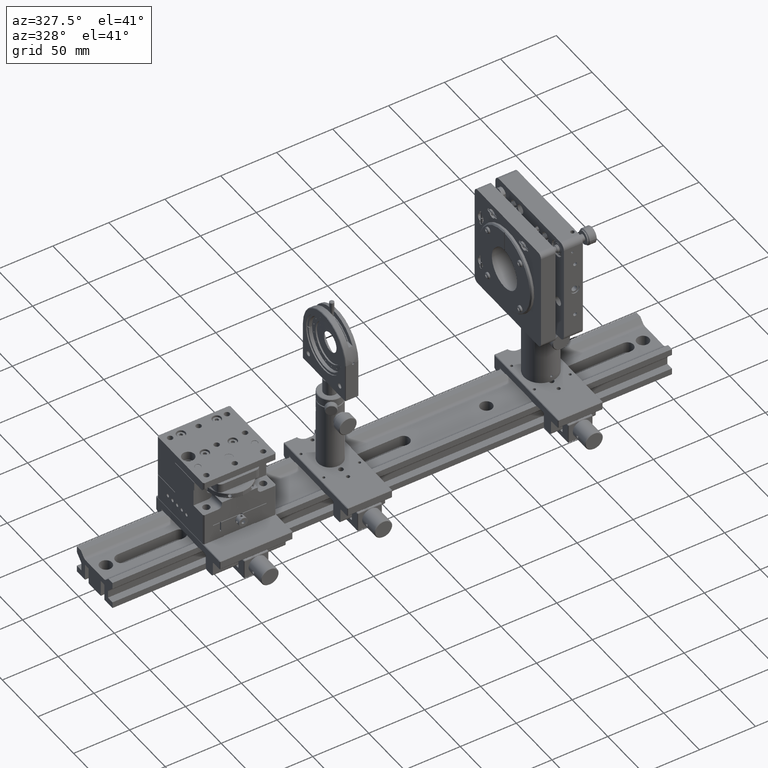
[diagram: clean part render]
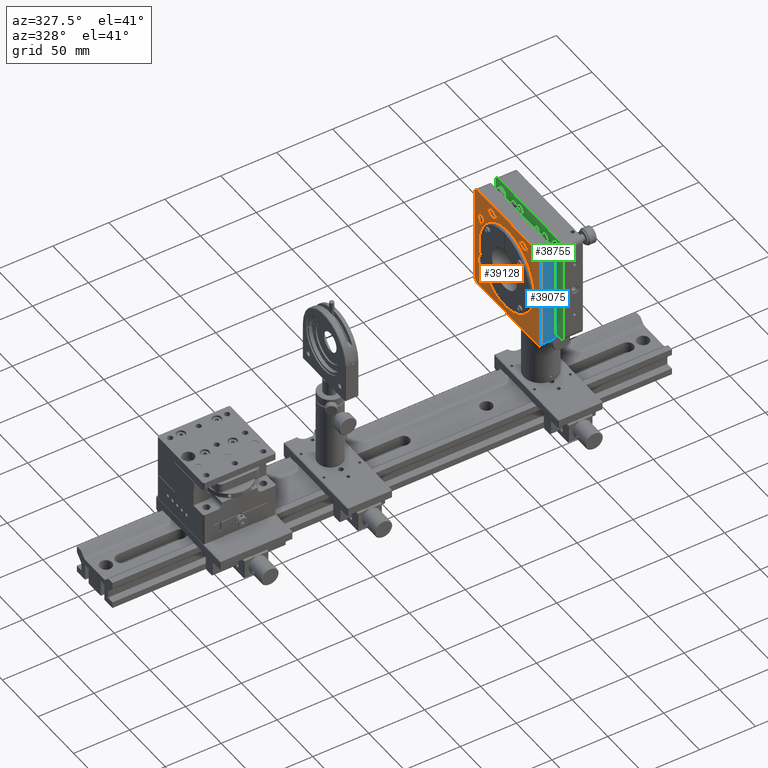
[diagram: same view with three faces highlighted in distinct colors, each labeled with its STEP entity id]
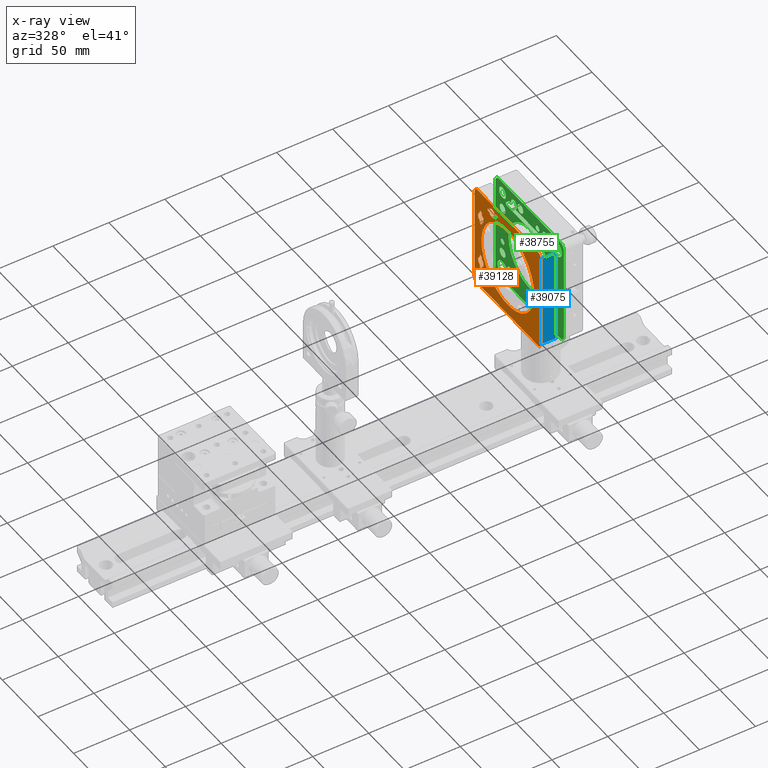
[diagram: x-ray of the same camera — body ghosted, the three highlighted faces saturated]
A machine part, auxiliary view with three faces highlighted in distinct colors.
The next image is the same camera in x-ray (body ghosted, the three faces saturated) — at least one of them is partly hidden behind the body in this view.
Their STEP definitions:

[orange] entity #39128 — the highlighted planar face has unit normal (1, 0, -0).
#3146=LINE('',#67691,#6456);
#3153=LINE('',#67719,#6463);
#3157=LINE('',#67726,#6467);
#3160=LINE('',#67736,#6470);
#3164=LINE('',#67745,#6474);
#3171=LINE('',#67773,#6481);
#3175=LINE('',#67780,#6485);
#3178=LINE('',#67790,#6488);
#3182=LINE('',#67808,#6492);
#3189=LINE('',#67827,#6499);
#3194=LINE('',#67842,#6504);
#3196=LINE('',#67849,#6506);
#3200=LINE('',#67862,#6510);
#3207=LINE('',#67881,#6517);
#3212=LINE('',#67896,#6522);
#3214=LINE('',#67903,#6524);
#3221=LINE('',#67925,#6531);
#3227=LINE('',#67959,#6537);
#3230=LINE('',#67967,#6540);
#3240=LINE('',#68008,#6550);
#6456=VECTOR('',#50892,10.);
#6463=VECTOR('',#50917,10.);
#6467=VECTOR('',#50923,10.);
#6470=VECTOR('',#50936,10.);
#6474=VECTOR('',#50942,10.);
#6481=VECTOR('',#50967,10.);
#6485=VECTOR('',#50973,10.);
#6488=VECTOR('',#50986,10.);
#6492=VECTOR('',#51008,10.);
#6499=VECTOR('',#51025,10.);
#6504=VECTOR('',#51038,10.);
#6506=VECTOR('',#51046,10.);
#6510=VECTOR('',#51058,10.);
#6517=VECTOR('',#51075,10.);
#6522=VECTOR('',#51088,10.);
#6524=VECTOR('',#51096,10.);
#6531=VECTOR('',#51117,10.);
#6537=VECTOR('',#51151,10.);
#6540=VECTOR('',#51160,10.);
#6550=VECTOR('',#51214,10.);
#8821=FACE_BOUND('',#12901,.T.);
#8822=FACE_BOUND('',#12902,.T.);
#8823=FACE_BOUND('',#12903,.T.);
#8824=FACE_BOUND('',#12904,.T.);
#8825=FACE_BOUND('',#12905,.T.);
#10281=FACE_OUTER_BOUND('',#12900,.T.);
#12900=EDGE_LOOP('',(#31626,#31627,#31628,#31629,#31630,#31631,#31632,#31633));
#12901=EDGE_LOOP('',(#31634));
#12902=EDGE_LOOP('',(#31635,#31636,#31637,#31638,#31639,#31640,#31641,#31642));
#12903=EDGE_LOOP('',(#31643,#31644,#31645,#31646,#31647,#31648,#31649,#31650));
#12904=EDGE_LOOP('',(#31651,#31652,#31653,#31654,#31655,#31656,#31657,#31658,
#31659));
#12905=EDGE_LOOP('',(#31660,#31661,#31662,#31663,#31664,#31665,#31666,#31667,
#31668));
#14969=CIRCLE('',#42689,1.5);
#14970=CIRCLE('',#42691,1.5);
#14977=CIRCLE('',#42705,1.5);
#14978=CIRCLE('',#42707,1.5);
#14979=CIRCLE('',#42710,4.);
#14980=CIRCLE('',#42711,4.);
#14982=CIRCLE('',#42714,4.);
#14983=CIRCLE('',#42715,4.);
#14988=CIRCLE('',#42724,1.5);
#14990=CIRCLE('',#42728,1.5);
#14996=CIRCLE('',#42740,1.5);
#14998=CIRCLE('',#42744,1.5);
#15001=CIRCLE('',#42750,4.);
#15013=CIRCLE('',#42765,4.);
#15014=CIRCLE('',#42768,4.);
#15015=CIRCLE('',#42771,4.);
#15018=CIRCLE('',#42779,4.);
#15019=CIRCLE('',#42780,4.);
#15020=CIRCLE('',#42781,4.);
#15021=CIRCLE('',#42783,4.);
#15022=CIRCLE('',#42784,4.);
#15023=CIRCLE('',#42785,4.);
#15042=CIRCLE('',#42845,37.);
#17963=VERTEX_POINT('',#67685);
#17965=VERTEX_POINT('',#67689);
#17976=VERTEX_POINT('',#67716);
#17977=VERTEX_POINT('',#67718);
#17978=VERTEX_POINT('',#67722);
#17979=VERTEX_POINT('',#67724);
#17980=VERTEX_POINT('',#67728);
#17981=VERTEX_POINT('',#67734);
#17983=VERTEX_POINT('',#67739);
#17985=VERTEX_POINT('',#67743);
#17996=VERTEX_POINT('',#67770);
#17997=VERTEX_POINT('',#67772);
#17998=VERTEX_POINT('',#67776);
#17999=VERTEX_POINT('',#67778);
#18000=VERTEX_POINT('',#67782);
#18001=VERTEX_POINT('',#67788);
#18004=VERTEX_POINT('',#67804);
#18006=VERTEX_POINT('',#67807);
#18012=VERTEX_POINT('',#67823);
#18013=VERTEX_POINT('',#67825);
#18014=VERTEX_POINT('',#67829);
#18015=VERTEX_POINT('',#67830);
#18019=VERTEX_POINT('',#67839);
#18020=VERTEX_POINT('',#67846);
#18024=VERTEX_POINT('',#67858);
#18026=VERTEX_POINT('',#67861);
#18032=VERTEX_POINT('',#67877);
#18033=VERTEX_POINT('',#67879);
#18034=VERTEX_POINT('',#67883);
#18035=VERTEX_POINT('',#67884);
#18039=VERTEX_POINT('',#67893);
#18040=VERTEX_POINT('',#67900);
#18044=VERTEX_POINT('',#67912);
#18045=VERTEX_POINT('',#67913);
#18049=VERTEX_POINT('',#67923);
#18062=VERTEX_POINT('',#67953);
#18063=VERTEX_POINT('',#67957);
#18064=VERTEX_POINT('',#67961);
#18065=VERTEX_POINT('',#67965);
#18066=VERTEX_POINT('',#67969);
#18071=VERTEX_POINT('',#67987);
#18072=VERTEX_POINT('',#67993);
#18115=VERTEX_POINT('',#68149);
#22637=EDGE_CURVE('',#17963,#17965,#3146,.T.);
#22650=EDGE_CURVE('',#17977,#17976,#3153,.T.);
#22654=EDGE_CURVE('',#17978,#17979,#3157,.T.);
#22655=EDGE_CURVE('',#17979,#17980,#14969,.T.);
#22657=EDGE_CURVE('',#17965,#17977,#14970,.T.);
#22659=EDGE_CURVE('',#17980,#17981,#3160,.T.);
#22663=EDGE_CURVE('',#17983,#17985,#3164,.T.);
#22676=EDGE_CURVE('',#17997,#17996,#3171,.T.);
#22680=EDGE_CURVE('',#17998,#17999,#3175,.T.);
#22681=EDGE_CURVE('',#17999,#18000,#14977,.T.);
#22683=EDGE_CURVE('',#17985,#17997,#14978,.T.);
#22685=EDGE_CURVE('',#18000,#18001,#3178,.T.);
#22686=EDGE_CURVE('',#17981,#17963,#14979,.T.);
#22687=EDGE_CURVE('',#17976,#17978,#14980,.T.);
#22690=EDGE_CURVE('',#18001,#17983,#14982,.T.);
#22691=EDGE_CURVE('',#17996,#17998,#14983,.T.);
#22695=EDGE_CURVE('',#18006,#18004,#3182,.T.);
#22705=EDGE_CURVE('',#18012,#18013,#3189,.T.);
#22706=EDGE_CURVE('',#18014,#18015,#14988,.T.);
#22712=EDGE_CURVE('',#18019,#18014,#3194,.T.);
#22713=EDGE_CURVE('',#18013,#18006,#14990,.T.);
#22715=EDGE_CURVE('',#18015,#18020,#3196,.T.);
#22721=EDGE_CURVE('',#18026,#18024,#3200,.T.);
#22731=EDGE_CURVE('',#18032,#18033,#3207,.T.);
#22732=EDGE_CURVE('',#18034,#18035,#14996,.T.);
#22738=EDGE_CURVE('',#18039,#18034,#3212,.T.);
#22739=EDGE_CURVE('',#18033,#18026,#14998,.T.);
#22741=EDGE_CURVE('',#18035,#18040,#3214,.T.);
#22746=EDGE_CURVE('',#18044,#18045,#15001,.T.);
#22752=EDGE_CURVE('',#18049,#18044,#3221,.T.);
#22766=EDGE_CURVE('',#18062,#18049,#15013,.T.);
#22769=EDGE_CURVE('',#18063,#18062,#3227,.T.);
#22770=EDGE_CURVE('',#18064,#18063,#15014,.T.);
#22773=EDGE_CURVE('',#18065,#18064,#3230,.T.);
#22774=EDGE_CURVE('',#18066,#18065,#15015,.T.);
#22782=EDGE_CURVE('',#18020,#18071,#15018,.T.);
#22783=EDGE_CURVE('',#18004,#18019,#15019,.T.);
#22784=EDGE_CURVE('',#18071,#18012,#15020,.T.);
#22786=EDGE_CURVE('',#18040,#18072,#15021,.T.);
#22787=EDGE_CURVE('',#18024,#18039,#15022,.T.);
#22788=EDGE_CURVE('',#18072,#18032,#15023,.T.);
#22794=EDGE_CURVE('',#18045,#18066,#3240,.T.);
#22858=EDGE_CURVE('',#18115,#18115,#15042,.T.);
#31626=ORIENTED_EDGE('',*,*,#22746,.F.);
#31627=ORIENTED_EDGE('',*,*,#22752,.F.);
#31628=ORIENTED_EDGE('',*,*,#22766,.F.);
#31629=ORIENTED_EDGE('',*,*,#22769,.F.);
#31630=ORIENTED_EDGE('',*,*,#22770,.F.);
#31631=ORIENTED_EDGE('',*,*,#22773,.F.);
#31632=ORIENTED_EDGE('',*,*,#22774,.F.);
#31633=ORIENTED_EDGE('',*,*,#22794,.F.);
#31634=ORIENTED_EDGE('',*,*,#22858,.T.);
#31635=ORIENTED_EDGE('',*,*,#22659,.T.);
#31636=ORIENTED_EDGE('',*,*,#22686,.T.);
#31637=ORIENTED_EDGE('',*,*,#22637,.T.);
#31638=ORIENTED_EDGE('',*,*,#22657,.T.);
#31639=ORIENTED_EDGE('',*,*,#22650,.T.);
#31640=ORIENTED_EDGE('',*,*,#22687,.T.);
#31641=ORIENTED_EDGE('',*,*,#22654,.T.);
#31642=ORIENTED_EDGE('',*,*,#22655,.T.);
#31643=ORIENTED_EDGE('',*,*,#22685,.T.);
#31644=ORIENTED_EDGE('',*,*,#22690,.T.);
#31645=ORIENTED_EDGE('',*,*,#22663,.T.);
#31646=ORIENTED_EDGE('',*,*,#22683,.T.);
#31647=ORIENTED_EDGE('',*,*,#22676,.T.);
#31648=ORIENTED_EDGE('',*,*,#22691,.T.);
#31649=ORIENTED_EDGE('',*,*,#22680,.T.);
#31650=ORIENTED_EDGE('',*,*,#22681,.T.);
#31651=ORIENTED_EDGE('',*,*,#22712,.T.);
#31652=ORIENTED_EDGE('',*,*,#22706,.T.);
#31653=ORIENTED_EDGE('',*,*,#22715,.T.);
#31654=ORIENTED_EDGE('',*,*,#22782,.T.);
#31655=ORIENTED_EDGE('',*,*,#22784,.T.);
#31656=ORIENTED_EDGE('',*,*,#22705,.T.);
#31657=ORIENTED_EDGE('',*,*,#22713,.T.);
#31658=ORIENTED_EDGE('',*,*,#22695,.T.);
#31659=ORIENTED_EDGE('',*,*,#22783,.T.);
#31660=ORIENTED_EDGE('',*,*,#22738,.T.);
#31661=ORIENTED_EDGE('',*,*,#22732,.T.);
#31662=ORIENTED_EDGE('',*,*,#22741,.T.);
#31663=ORIENTED_EDGE('',*,*,#22786,.T.);
#31664=ORIENTED_EDGE('',*,*,#22788,.T.);
#31665=ORIENTED_EDGE('',*,*,#22731,.T.);
#31666=ORIENTED_EDGE('',*,*,#22739,.T.);
#31667=ORIENTED_EDGE('',*,*,#22721,.T.);
#31668=ORIENTED_EDGE('',*,*,#22787,.T.);
#37384=PLANE('',#42844);
#39128=ADVANCED_FACE('',(#10281,#8821,#8822,#8823,#8824,#8825),#37384,.F.);
#42689=AXIS2_PLACEMENT_3D('',#67729,#50926,#50927);
#42691=AXIS2_PLACEMENT_3D('',#67732,#50931,#50932);
#42705=AXIS2_PLACEMENT_3D('',#67783,#50976,#50977);
#42707=AXIS2_PLACEMENT_3D('',#67786,#50981,#50982);
#42710=AXIS2_PLACEMENT_3D('',#67792,#50989,#50990);
#42711=AXIS2_PLACEMENT_3D('',#67793,#50991,#50992);
#42714=AXIS2_PLACEMENT_3D('',#67798,#50998,#50999);
#42715=AXIS2_PLACEMENT_3D('',#67799,#51000,#51001);
#42724=AXIS2_PLACEMENT_3D('',#67831,#51028,#51029);
#42728=AXIS2_PLACEMENT_3D('',#67844,#51041,#51042);
#42740=AXIS2_PLACEMENT_3D('',#67885,#51078,#51079);
#42744=AXIS2_PLACEMENT_3D('',#67898,#51091,#51092);
#42750=AXIS2_PLACEMENT_3D('',#67914,#51107,#51108);
#42765=AXIS2_PLACEMENT_3D('',#67954,#51145,#51146);
#42768=AXIS2_PLACEMENT_3D('',#67962,#51154,#51155);
#42771=AXIS2_PLACEMENT_3D('',#67970,#51163,#51164);
#42779=AXIS2_PLACEMENT_3D('',#67988,#51184,#51185);
#42780=AXIS2_PLACEMENT_3D('',#67989,#51186,#51187);
#42781=AXIS2_PLACEMENT_3D('',#67990,#51188,#51189);
#42783=AXIS2_PLACEMENT_3D('',#67994,#51193,#51194);
#42784=AXIS2_PLACEMENT_3D('',#67995,#51195,#51196);
#42785=AXIS2_PLACEMENT_3D('',#67996,#51197,#51198);
#42844=AXIS2_PLACEMENT_3D('',#68148,#51366,#51367);
#42845=AXIS2_PLACEMENT_3D('',#68150,#51368,#51369);
#50892=DIRECTION('',(-1.,1.48286359674599E-30,4.79640460653305E-16));
#50917=DIRECTION('',(1.,-1.48286359674599E-30,-4.79640460653305E-16));
#50923=DIRECTION('',(1.,-1.48286359674599E-30,-4.79640460653305E-16));
#50926=DIRECTION('center_axis',(1.48286359674599E-30,1.,6.16297582203888E-32));
#50927=DIRECTION('ref_axis',(-4.79640460653305E-16,6.16297582203895E-32,
-1.));
#50931=DIRECTION('center_axis',(1.48286359674599E-30,1.,6.16297582203888E-32));
#50932=DIRECTION('ref_axis',(4.79640460653305E-16,-6.16297582203895E-32,
1.));
#50936=DIRECTION('',(-1.,1.48286359674599E-30,4.79640460653305E-16));
#50942=DIRECTION('',(-1.,1.48286359674599E-30,4.79640460653305E-16));
#50967=DIRECTION('',(1.,-1.48286359674599E-30,-4.79640460653305E-16));
#50973=DIRECTION('',(1.,-1.48286359674599E-30,-4.79640460653305E-16));
#50976=DIRECTION('center_axis',(1.48286359674599E-30,1.,6.16297582203888E-32));
#50977=DIRECTION('ref_axis',(-4.79640460653305E-16,6.16297582203895E-32,
-1.));
#50981=DIRECTION('center_axis',(1.48286359674599E-30,1.,6.16297582203888E-32));
#50982=DIRECTION('ref_axis',(4.79640460653305E-16,-6.16297582203895E-32,
1.));
#50986=DIRECTION('',(-1.,1.48286359674599E-30,4.79640460653305E-16));
#50989=DIRECTION('center_axis',(1.48286359674599E-30,1.,6.16297582203888E-32));
#50990=DIRECTION('ref_axis',(1.,-1.48286359674599E-30,-4.18408120695937E-16));
#50991=DIRECTION('center_axis',(1.48286359674599E-30,1.,6.16297582203888E-32));
#50992=DIRECTION('ref_axis',(1.,-1.48286359674599E-30,-4.18408120695937E-16));
#50998=DIRECTION('center_axis',(1.48286359674599E-30,1.,6.16297582203888E-32));
#50999=DIRECTION('ref_axis',(1.,-1.48286359674599E-30,-4.18408120695937E-16));
#51000=DIRECTION('center_axis',(1.48286359674599E-30,1.,6.16297582203888E-32));
#51001=DIRECTION('ref_axis',(1.,-1.48286359674599E-30,-4.18408120695937E-16));
#51008=DIRECTION('',(-4.18408120695937E-16,6.16297582203894E-32,-1.));
#51025=DIRECTION('',(4.18408120695937E-16,-6.16297582203894E-32,1.));
#51028=DIRECTION('center_axis',(1.48286359674599E-30,1.,6.16297582203888E-32));
#51029=DIRECTION('ref_axis',(-1.,1.48286359674599E-30,4.18408120695937E-16));
#51038=DIRECTION('',(-4.18408120695937E-16,6.16297582203894E-32,-1.));
#51041=DIRECTION('center_axis',(1.48286359674599E-30,1.,6.16297582203888E-32));
#51042=DIRECTION('ref_axis',(1.,-1.48286359674599E-30,-4.18408120695937E-16));
#51046=DIRECTION('',(4.18408120695937E-16,-6.16297582203894E-32,1.));
#51058=DIRECTION('',(-4.18408120695937E-16,6.16297582203894E-32,-1.));
#51075=DIRECTION('',(4.18408120695937E-16,-6.16297582203894E-32,1.));
#51078=DIRECTION('center_axis',(1.48286359674599E-30,1.,6.16297582203888E-32));
#51079=DIRECTION('ref_axis',(-1.,1.48286359674599E-30,4.18408120695937E-16));
#51088=DIRECTION('',(-4.18408120695937E-16,6.16297582203894E-32,-1.));
#51091=DIRECTION('center_axis',(1.48286359674599E-30,1.,6.16297582203888E-32));
#51092=DIRECTION('ref_axis',(1.,-1.48286359674599E-30,-4.18408120695937E-16));
#51096=DIRECTION('',(4.18408120695937E-16,-6.16297582203894E-32,1.));
#51107=DIRECTION('center_axis',(1.48286359674599E-30,1.,6.16297582203888E-32));
#51108=DIRECTION('ref_axis',(0.707106781186547,-1.00496408487324E-30,-0.707106781186548));
#51117=DIRECTION('',(-7.04917288341139E-16,6.16297582203899E-32,-1.));
#51145=DIRECTION('center_axis',(1.48286359674599E-30,1.,6.16297582203888E-32));
#51146=DIRECTION('ref_axis',(0.707106781186548,-1.09212172479429E-30,0.707106781186547));
#51151=DIRECTION('',(1.,-1.48286359674599E-30,-4.18408120695937E-16));
#51154=DIRECTION('center_axis',(1.48286359674599E-30,1.,6.16297582203888E-32));
#51155=DIRECTION('ref_axis',(-0.707106781186547,1.00496408487324E-30,0.707106781186548));
#51160=DIRECTION('',(4.18408120695937E-16,-6.16297582203894E-32,1.));
#51163=DIRECTION('center_axis',(1.48286359674599E-30,1.,6.16297582203888E-32));
#51164=DIRECTION('ref_axis',(-0.707106781186548,1.09212172479429E-30,-0.707106781186547));
#51184=DIRECTION('center_axis',(1.48286359674599E-30,1.,6.16297582203888E-32));
#51185=DIRECTION('ref_axis',(1.,-1.48286359674599E-30,-4.18408120695937E-16));
#51186=DIRECTION('center_axis',(1.48286359674599E-30,1.,6.16297582203888E-32));
#51187=DIRECTION('ref_axis',(1.,-1.48286359674599E-30,-4.18408120695937E-16));
#51188=DIRECTION('center_axis',(1.48286359674599E-30,1.,6.16297582203888E-32));
#51189=DIRECTION('ref_axis',(1.,-1.48286359674599E-30,-4.18408120695937E-16));
#51193=DIRECTION('center_axis',(1.48286359674599E-30,1.,6.16297582203888E-32));
#51194=DIRECTION('ref_axis',(1.,-1.48286359674599E-30,-4.18408120695937E-16));
#51195=DIRECTION('center_axis',(1.48286359674599E-30,1.,6.16297582203888E-32));
#51196=DIRECTION('ref_axis',(1.,-1.48286359674599E-30,-4.18408120695937E-16));
#51197=DIRECTION('center_axis',(1.48286359674599E-30,1.,6.16297582203888E-32));
#51198=DIRECTION('ref_axis',(1.,-1.48286359674599E-30,-4.18408120695937E-16));
#51214=DIRECTION('',(-1.,1.48286359674599E-30,4.18408120695937E-16));
#51366=DIRECTION('center_axis',(1.48286359674599E-30,1.,6.16297582203888E-32));
#51367=DIRECTION('ref_axis',(4.18408120695937E-16,-6.16297582203894E-32,
1.));
#51368=DIRECTION('center_axis',(1.48286359674599E-30,1.,6.16297582203888E-32));
#51369=DIRECTION('ref_axis',(0.707106781186523,-1.0049640848732E-30,-0.707106781186572));
#67685=CARTESIAN_POINT('',(18.2919007564521,-19.5,36.5));
#67689=CARTESIAN_POINT('',(17.,-19.5,36.5));
#67691=CARTESIAN_POINT('',(13.5,-19.5,36.5));
#67716=CARTESIAN_POINT('',(18.2919007564521,-19.5,39.5));
#67718=CARTESIAN_POINT('',(17.,-19.5,39.5));
#67719=CARTESIAN_POINT('',(8.49999999999995,-19.5,39.5));
#67722=CARTESIAN_POINT('',(25.7080992435478,-19.5,39.5));
#67724=CARTESIAN_POINT('',(27.,-19.5,39.5));
#67726=CARTESIAN_POINT('',(8.49999999999995,-19.5,39.5));
#67728=CARTESIAN_POINT('',(26.9999999999999,-19.5,36.5));
#67729=CARTESIAN_POINT('Origin',(27.,-19.5,38.));
#67732=CARTESIAN_POINT('Origin',(17.,-19.5,38.));
#67734=CARTESIAN_POINT('',(25.7080992435478,-19.5,36.5));
#67736=CARTESIAN_POINT('',(13.5,-19.5,36.5));
#67739=CARTESIAN_POINT('',(-25.7080992435479,-19.5,36.5));
#67743=CARTESIAN_POINT('',(-27.,-19.5,36.5));
#67745=CARTESIAN_POINT('',(-8.50000000000005,-19.5,36.5));
#67770=CARTESIAN_POINT('',(-25.7080992435479,-19.5,39.5));
#67772=CARTESIAN_POINT('',(-27.,-19.5,39.5));
#67773=CARTESIAN_POINT('',(-13.5,-19.5,39.5));
#67776=CARTESIAN_POINT('',(-18.2919007564522,-19.5,39.5));
#67778=CARTESIAN_POINT('',(-17.0000000000001,-19.5,39.5));
#67780=CARTESIAN_POINT('',(-13.5,-19.5,39.5));
#67782=CARTESIAN_POINT('',(-17.0000000000001,-19.5,36.5));
#67783=CARTESIAN_POINT('Origin',(-17.0000000000001,-19.5,38.));
#67786=CARTESIAN_POINT('Origin',(-27.,-19.5,38.));
#67788=CARTESIAN_POINT('',(-18.2919007564522,-19.5,36.5));
#67790=CARTESIAN_POINT('',(-8.50000000000005,-19.5,36.5));
#67792=CARTESIAN_POINT('Origin',(22.,-19.5,38.));
#67793=CARTESIAN_POINT('Origin',(22.,-19.5,38.));
#67798=CARTESIAN_POINT('Origin',(-22.0000000000001,-19.5,38.));
#67799=CARTESIAN_POINT('Origin',(-22.0000000000001,-19.5,38.));
#67804=CARTESIAN_POINT('',(-36.5000000000001,-19.5,-18.2919007564522));
#67807=CARTESIAN_POINT('',(-36.5000000000001,-19.5,-17.));
#67808=CARTESIAN_POINT('',(-36.5000000000001,-19.5,-8.49999999999998));
#67823=CARTESIAN_POINT('',(-39.5000000000001,-19.5,-18.2919007564522));
#67825=CARTESIAN_POINT('',(-39.5000000000001,-19.5,-17.));
#67827=CARTESIAN_POINT('',(-39.5000000000001,-19.5,-13.5));
#67829=CARTESIAN_POINT('',(-36.5000000000001,-19.5,-27.));
#67830=CARTESIAN_POINT('',(-39.5000000000001,-19.5,-27.));
#67831=CARTESIAN_POINT('Origin',(-38.0000000000001,-19.5,-27.));
#67839=CARTESIAN_POINT('',(-36.5000000000001,-19.5,-25.7080992435478));
#67842=CARTESIAN_POINT('',(-36.5000000000001,-19.5,-8.49999999999998));
#67844=CARTESIAN_POINT('Origin',(-38.0000000000001,-19.5,-17.));
#67846=CARTESIAN_POINT('',(-39.5000000000001,-19.5,-25.7080992435478));
#67849=CARTESIAN_POINT('',(-39.5000000000001,-19.5,-13.5));
#67858=CARTESIAN_POINT('',(-36.5000000000001,-19.5,25.7080992435478));
#67861=CARTESIAN_POINT('',(-36.5000000000001,-19.5,27.));
#67862=CARTESIAN_POINT('',(-36.5000000000001,-19.5,13.5));
#67877=CARTESIAN_POINT('',(-39.5000000000001,-19.5,25.7080992435478));
#67879=CARTESIAN_POINT('',(-39.5000000000001,-19.5,27.));
#67881=CARTESIAN_POINT('',(-39.5000000000001,-19.5,8.50000000000002));
#67883=CARTESIAN_POINT('',(-36.5000000000001,-19.5,17.));
#67884=CARTESIAN_POINT('',(-39.5000000000001,-19.5,17.));
#67885=CARTESIAN_POINT('Origin',(-38.0000000000001,-19.5,17.));
#67893=CARTESIAN_POINT('',(-36.5000000000001,-19.5,18.2919007564522));
#67896=CARTESIAN_POINT('',(-36.5000000000001,-19.5,13.5));
#67898=CARTESIAN_POINT('Origin',(-38.0000000000001,-19.5,27.));
#67900=CARTESIAN_POINT('',(-39.5000000000001,-19.5,18.2919007564522));
#67903=CARTESIAN_POINT('',(-39.5000000000001,-19.5,8.50000000000002));
#67912=CARTESIAN_POINT('',(46.4999999999999,-19.5,-42.5));
#67913=CARTESIAN_POINT('',(42.4999999999999,-19.5,-46.5));
#67914=CARTESIAN_POINT('Origin',(42.4999999999999,-19.5,-42.5));
#67923=CARTESIAN_POINT('',(46.5,-19.5,42.5));
#67925=CARTESIAN_POINT('',(46.4999999999999,-19.5,-46.5));
#67953=CARTESIAN_POINT('',(42.5,-19.5,46.5));
#67954=CARTESIAN_POINT('Origin',(42.5,-19.5,42.5));
#67957=CARTESIAN_POINT('',(-42.5000000000001,-19.5,46.5));
#67959=CARTESIAN_POINT('',(46.5,-19.5,46.5));
#67961=CARTESIAN_POINT('',(-46.5000000000001,-19.5,42.5));
#67962=CARTESIAN_POINT('Origin',(-42.5000000000001,-19.5,42.5));
#67965=CARTESIAN_POINT('',(-46.5000000000001,-19.5,-42.5));
#67967=CARTESIAN_POINT('',(-46.5000000000001,-19.5,46.5));
#67969=CARTESIAN_POINT('',(-42.5000000000001,-19.5,-46.5));
#67970=CARTESIAN_POINT('Origin',(-42.5000000000001,-19.5,-42.5));
#67987=CARTESIAN_POINT('',(-42.0000000000001,-19.5,-22.));
#67988=CARTESIAN_POINT('Origin',(-38.0000000000001,-19.5,-22.));
#67989=CARTESIAN_POINT('Origin',(-38.0000000000001,-19.5,-22.));
#67990=CARTESIAN_POINT('Origin',(-38.0000000000001,-19.5,-22.));
#67993=CARTESIAN_POINT('',(-42.0000000000001,-19.5,22.));
#67994=CARTESIAN_POINT('Origin',(-38.0000000000001,-19.5,22.));
#67995=CARTESIAN_POINT('Origin',(-38.0000000000001,-19.5,22.));
#67996=CARTESIAN_POINT('Origin',(-38.0000000000001,-19.5,22.));
#68008=CARTESIAN_POINT('',(-46.5000000000001,-19.5,-46.5));
#68148=CARTESIAN_POINT('Origin',(-6.66133814775094E-14,-19.5,2.22044604925031E-15));
#68149=CARTESIAN_POINT('',(-26.1629509039014,-19.5,26.1629509039032));
#68150=CARTESIAN_POINT('Origin',(-7.31197235431731E-14,-19.5,2.09257472670713E-15));

[blue] entity #39075 — the highlighted planar face has unit normal (0, -1, 0).
#3218=LINE('',#67919,#6528);
#3219=LINE('',#67922,#6529);
#3220=LINE('',#67924,#6530);
#3221=LINE('',#67925,#6531);
#6528=VECTOR('',#51112,10.);
#6529=VECTOR('',#51115,10.);
#6530=VECTOR('',#51116,10.);
#6531=VECTOR('',#51117,10.);
#10228=FACE_OUTER_BOUND('',#12822,.T.);
#12822=EDGE_LOOP('',(#31380,#31381,#31382,#31383));
#18044=VERTEX_POINT('',#67912);
#18047=VERTEX_POINT('',#67917);
#18048=VERTEX_POINT('',#67921);
#18049=VERTEX_POINT('',#67923);
#22749=EDGE_CURVE('',#18047,#18044,#3218,.T.);
#22750=EDGE_CURVE('',#18047,#18048,#3219,.T.);
#22751=EDGE_CURVE('',#18049,#18048,#3220,.T.);
#22752=EDGE_CURVE('',#18049,#18044,#3221,.T.);
#31380=ORIENTED_EDGE('',*,*,#22749,.F.);
#31381=ORIENTED_EDGE('',*,*,#22750,.T.);
#31382=ORIENTED_EDGE('',*,*,#22751,.F.);
#31383=ORIENTED_EDGE('',*,*,#22752,.T.);
#37355=PLANE('',#42752);
#39075=ADVANCED_FACE('',(#10228),#37355,.T.);
#42752=AXIS2_PLACEMENT_3D('',#67920,#51113,#51114);
#51112=DIRECTION('',(-1.48286359674599E-30,-1.,-6.16297582203888E-32));
#51113=DIRECTION('center_axis',(1.,-1.48286359674599E-30,-7.04917288341139E-16));
#51114=DIRECTION('ref_axis',(-7.04917288341139E-16,6.16297582203899E-32,
-1.));
#51115=DIRECTION('',(7.04917288341139E-16,-6.16297582203899E-32,1.));
#51116=DIRECTION('',(1.48286359674599E-30,1.,6.16297582203888E-32));
#51117=DIRECTION('',(-7.04917288341139E-16,6.16297582203899E-32,-1.));
#67912=CARTESIAN_POINT('',(46.4999999999999,-19.5,-42.5));
#67917=CARTESIAN_POINT('',(46.4999999999999,-6.5,-42.5));
#67919=CARTESIAN_POINT('',(46.4999999999999,-6.5,-42.5));
#67920=CARTESIAN_POINT('Origin',(46.5,-6.5,46.5));
#67921=CARTESIAN_POINT('',(46.5,-6.5,42.5));
#67922=CARTESIAN_POINT('',(46.4999999999999,-6.5,-46.5));
#67923=CARTESIAN_POINT('',(46.5,-19.5,42.5));
#67924=CARTESIAN_POINT('',(46.5,-6.5,42.5));
#67925=CARTESIAN_POINT('',(46.4999999999999,-19.5,-46.5));

[green] entity #38755 — the highlighted planar face has unit normal (1, 0, -0).
#629=B_SPLINE_CURVE_WITH_KNOTS('',3,(#64894,#64895,#64896,#64897),
 .UNSPECIFIED.,.F.,.F.,(4,4),(0.,0.00444310024717284),.UNSPECIFIED.);
#634=B_SPLINE_CURVE_WITH_KNOTS('',3,(#65292,#65293,#65294,#65295),
 .UNSPECIFIED.,.F.,.F.,(4,4),(0.,0.00475790876328646),.UNSPECIFIED.);
#2643=LINE('',#64579,#5953);
#2647=LINE('',#64586,#5957);
#2649=LINE('',#64590,#5959);
#2654=LINE('',#64601,#5964);
#2668=LINE('',#64726,#5978);
#2675=LINE('',#64984,#5985);
#2678=LINE('',#64999,#5988);
#2680=LINE('',#65124,#5990);
#2737=LINE('',#65934,#6047);
#2740=LINE('',#65939,#6050);
#2742=LINE('',#65942,#6052);
#2745=LINE('',#65958,#6055);
#2746=LINE('',#65962,#6056);
#2747=LINE('',#65966,#6057);
#2748=LINE('',#65969,#6058);
#2749=LINE('',#65998,#6059);
#2750=LINE('',#66002,#6060);
#5953=VECTOR('',#49219,10.);
#5957=VECTOR('',#49225,10.);
#5959=VECTOR('',#49229,10.);
#5964=VECTOR('',#49236,10.);
#5978=VECTOR('',#49270,10.);
#5985=VECTOR('',#49281,10.);
#5988=VECTOR('',#49288,10.);
#5990=VECTOR('',#49292,10.);
#6047=VECTOR('',#49421,10.);
#6050=VECTOR('',#49426,10.);
#6052=VECTOR('',#49430,10.);
#6055=VECTOR('',#49449,10.);
#6056=VECTOR('',#49452,10.);
#6057=VECTOR('',#49455,10.);
#6058=VECTOR('',#49458,10.);
#6059=VECTOR('',#49485,10.);
#6060=VECTOR('',#49488,10.);
#8714=FACE_BOUND('',#12421,.T.);
#8715=FACE_BOUND('',#12422,.T.);
#8716=FACE_BOUND('',#12423,.T.);
#8717=FACE_BOUND('',#12424,.T.);
#8718=FACE_BOUND('',#12425,.T.);
#8719=FACE_BOUND('',#12426,.T.);
#8720=FACE_BOUND('',#12427,.T.);
#8721=FACE_BOUND('',#12428,.T.);
#8722=FACE_BOUND('',#12429,.T.);
#8723=FACE_BOUND('',#12430,.T.);
#8724=FACE_BOUND('',#12431,.T.);
#8725=FACE_BOUND('',#12432,.T.);
#8726=FACE_BOUND('',#12433,.T.);
#8727=FACE_BOUND('',#12434,.T.);
#8728=FACE_BOUND('',#12435,.T.);
#9908=FACE_OUTER_BOUND('',#12420,.T.);
#12420=EDGE_LOOP('',(#29848,#29849,#29850,#29851,#29852,#29853,#29854,#29855));
#12421=EDGE_LOOP('',(#29856));
#12422=EDGE_LOOP('',(#29857));
#12423=EDGE_LOOP('',(#29858));
#12424=EDGE_LOOP('',(#29859));
#12425=EDGE_LOOP('',(#29860));
#12426=EDGE_LOOP('',(#29861));
#12427=EDGE_LOOP('',(#29862));
#12428=EDGE_LOOP('',(#29863));
#12429=EDGE_LOOP('',(#29864));
#12430=EDGE_LOOP('',(#29865));
#12431=EDGE_LOOP('',(#29866));
#12432=EDGE_LOOP('',(#29867));
#12433=EDGE_LOOP('',(#29868));
#12434=EDGE_LOOP('',(#29869,#29870,#29871,#29872));
#12435=EDGE_LOOP('',(#29873,#29874,#29875,#29876,#29877,#29878,#29879,#29880,
#29881,#29882,#29883,#29884,#29885,#29886,#29887,#29888,#29889,#29890));
#14723=CIRCLE('',#42150,30.5);
#14726=CIRCLE('',#42156,5.);
#14727=CIRCLE('',#42157,5.);
#14728=CIRCLE('',#42158,5.);
#14729=CIRCLE('',#42159,5.);
#14730=CIRCLE('',#42160,29.5);
#14731=CIRCLE('',#42161,3.5);
#14732=CIRCLE('',#42162,3.5);
#14733=CIRCLE('',#42163,7.);
#14734=CIRCLE('',#42164,7.);
#14735=CIRCLE('',#42165,4.);
#14736=CIRCLE('',#42166,4.);
#14737=CIRCLE('',#42167,4.);
#14738=CIRCLE('',#42168,4.);
#14739=CIRCLE('',#42169,4.);
#14740=CIRCLE('',#42170,4.);
#14741=CIRCLE('',#42171,2.5);
#14742=CIRCLE('',#42172,2.5);
#14743=CIRCLE('',#42173,5.);
#14744=CIRCLE('',#42174,5.);
#14745=CIRCLE('',#42175,4.);
#14746=CIRCLE('',#42176,4.);
#14747=CIRCLE('',#42177,4.);
#14748=CIRCLE('',#42178,4.);
#17433=VERTEX_POINT('',#64577);
#17434=VERTEX_POINT('',#64578);
#17436=VERTEX_POINT('',#64585);
#17437=VERTEX_POINT('',#64589);
#17440=VERTEX_POINT('',#64597);
#17442=VERTEX_POINT('',#64600);
#17458=VERTEX_POINT('',#64725);
#17461=VERTEX_POINT('',#64892);
#17462=VERTEX_POINT('',#64893);
#17468=VERTEX_POINT('',#64997);
#17469=VERTEX_POINT('',#64998);
#17472=VERTEX_POINT('',#65123);
#17475=VERTEX_POINT('',#65291);
#17510=VERTEX_POINT('',#65932);
#17511=VERTEX_POINT('',#65933);
#17512=VERTEX_POINT('',#65938);
#17515=VERTEX_POINT('',#65954);
#17516=VERTEX_POINT('',#65955);
#17517=VERTEX_POINT('',#65957);
#17518=VERTEX_POINT('',#65959);
#17519=VERTEX_POINT('',#65961);
#17520=VERTEX_POINT('',#65963);
#17521=VERTEX_POINT('',#65965);
#17522=VERTEX_POINT('',#65967);
#17523=VERTEX_POINT('',#65970);
#17524=VERTEX_POINT('',#65972);
#17525=VERTEX_POINT('',#65974);
#17526=VERTEX_POINT('',#65976);
#17527=VERTEX_POINT('',#65978);
#17528=VERTEX_POINT('',#65980);
#17529=VERTEX_POINT('',#65982);
#17530=VERTEX_POINT('',#65984);
#17531=VERTEX_POINT('',#65986);
#17532=VERTEX_POINT('',#65988);
#17533=VERTEX_POINT('',#65990);
#17534=VERTEX_POINT('',#65992);
#17535=VERTEX_POINT('',#65994);
#17536=VERTEX_POINT('',#65996);
#17537=VERTEX_POINT('',#65997);
#17538=VERTEX_POINT('',#65999);
#17539=VERTEX_POINT('',#66001);
#17540=VERTEX_POINT('',#66004);
#17541=VERTEX_POINT('',#66007);
#21834=EDGE_CURVE('',#17433,#17434,#2643,.T.);
#21838=EDGE_CURVE('',#17436,#17433,#2647,.T.);
#21840=EDGE_CURVE('',#17437,#17436,#2649,.T.);
#21845=EDGE_CURVE('',#17442,#17440,#2654,.T.);
#21866=EDGE_CURVE('',#17434,#17458,#2668,.T.);
#21870=EDGE_CURVE('',#17461,#17462,#629,.T.);
#21877=EDGE_CURVE('',#17458,#17461,#2675,.T.);
#21881=EDGE_CURVE('',#17468,#17469,#2678,.T.);
#21885=EDGE_CURVE('',#17469,#17472,#2680,.T.);
#21890=EDGE_CURVE('',#17475,#17468,#634,.T.);
#21958=EDGE_CURVE('',#17510,#17511,#2737,.T.);
#21961=EDGE_CURVE('',#17512,#17510,#2740,.T.);
#21963=EDGE_CURVE('',#17472,#17512,#2742,.T.);
#21964=EDGE_CURVE('',#17462,#17475,#14723,.T.);
#21969=EDGE_CURVE('',#17515,#17516,#14726,.T.);
#21970=EDGE_CURVE('',#17515,#17517,#2745,.T.);
#21971=EDGE_CURVE('',#17518,#17517,#14727,.T.);
#21972=EDGE_CURVE('',#17518,#17519,#2746,.T.);
#21973=EDGE_CURVE('',#17520,#17519,#14728,.T.);
#21974=EDGE_CURVE('',#17520,#17521,#2747,.T.);
#21975=EDGE_CURVE('',#17522,#17521,#14729,.T.);
#21976=EDGE_CURVE('',#17522,#17516,#2748,.T.);
#21977=EDGE_CURVE('',#17523,#17523,#14730,.T.);
#21978=EDGE_CURVE('',#17524,#17524,#14731,.T.);
#21979=EDGE_CURVE('',#17525,#17525,#14732,.T.);
#21980=EDGE_CURVE('',#17526,#17526,#14733,.T.);
#21981=EDGE_CURVE('',#17527,#17527,#14734,.T.);
#21982=EDGE_CURVE('',#17528,#17528,#14735,.T.);
#21983=EDGE_CURVE('',#17529,#17529,#14736,.T.);
#21984=EDGE_CURVE('',#17530,#17530,#14737,.T.);
#21985=EDGE_CURVE('',#17531,#17531,#14738,.T.);
#21986=EDGE_CURVE('',#17532,#17532,#14739,.T.);
#21987=EDGE_CURVE('',#17533,#17533,#14740,.T.);
#21988=EDGE_CURVE('',#17534,#17534,#14741,.T.);
#21989=EDGE_CURVE('',#17535,#17535,#14742,.T.);
#21990=EDGE_CURVE('',#17536,#17537,#2749,.T.);
#21991=EDGE_CURVE('',#17537,#17538,#14743,.T.);
#21992=EDGE_CURVE('',#17538,#17539,#2750,.T.);
#21993=EDGE_CURVE('',#17539,#17536,#14744,.T.);
#21994=EDGE_CURVE('',#17511,#17540,#14745,.T.);
#21995=EDGE_CURVE('',#17540,#17442,#14746,.T.);
#21996=EDGE_CURVE('',#17440,#17541,#14747,.T.);
#21997=EDGE_CURVE('',#17541,#17437,#14748,.T.);
#29848=ORIENTED_EDGE('',*,*,#21969,.F.);
#29849=ORIENTED_EDGE('',*,*,#21970,.T.);
#29850=ORIENTED_EDGE('',*,*,#21971,.F.);
#29851=ORIENTED_EDGE('',*,*,#21972,.T.);
#29852=ORIENTED_EDGE('',*,*,#21973,.F.);
#29853=ORIENTED_EDGE('',*,*,#21974,.T.);
#29854=ORIENTED_EDGE('',*,*,#21975,.F.);
#29855=ORIENTED_EDGE('',*,*,#21976,.T.);
#29856=ORIENTED_EDGE('',*,*,#21977,.T.);
#29857=ORIENTED_EDGE('',*,*,#21978,.T.);
#29858=ORIENTED_EDGE('',*,*,#21979,.T.);
#29859=ORIENTED_EDGE('',*,*,#21980,.T.);
#29860=ORIENTED_EDGE('',*,*,#21981,.T.);
#29861=ORIENTED_EDGE('',*,*,#21982,.T.);
#29862=ORIENTED_EDGE('',*,*,#21983,.T.);
#29863=ORIENTED_EDGE('',*,*,#21984,.T.);
#29864=ORIENTED_EDGE('',*,*,#21985,.T.);
#29865=ORIENTED_EDGE('',*,*,#21986,.T.);
#29866=ORIENTED_EDGE('',*,*,#21987,.T.);
#29867=ORIENTED_EDGE('',*,*,#21988,.T.);
#29868=ORIENTED_EDGE('',*,*,#21989,.T.);
#29869=ORIENTED_EDGE('',*,*,#21990,.T.);
#29870=ORIENTED_EDGE('',*,*,#21991,.T.);
#29871=ORIENTED_EDGE('',*,*,#21992,.T.);
#29872=ORIENTED_EDGE('',*,*,#21993,.T.);
#29873=ORIENTED_EDGE('',*,*,#21840,.T.);
#29874=ORIENTED_EDGE('',*,*,#21838,.T.);
#29875=ORIENTED_EDGE('',*,*,#21834,.T.);
#29876=ORIENTED_EDGE('',*,*,#21866,.T.);
#29877=ORIENTED_EDGE('',*,*,#21877,.T.);
#29878=ORIENTED_EDGE('',*,*,#21870,.T.);
#29879=ORIENTED_EDGE('',*,*,#21964,.T.);
#29880=ORIENTED_EDGE('',*,*,#21890,.T.);
#29881=ORIENTED_EDGE('',*,*,#21881,.T.);
#29882=ORIENTED_EDGE('',*,*,#21885,.T.);
#29883=ORIENTED_EDGE('',*,*,#21963,.T.);
#29884=ORIENTED_EDGE('',*,*,#21961,.T.);
#29885=ORIENTED_EDGE('',*,*,#21958,.T.);
#29886=ORIENTED_EDGE('',*,*,#21994,.T.);
#29887=ORIENTED_EDGE('',*,*,#21995,.T.);
#29888=ORIENTED_EDGE('',*,*,#21845,.T.);
#29889=ORIENTED_EDGE('',*,*,#21996,.T.);
#29890=ORIENTED_EDGE('',*,*,#21997,.T.);
#37177=PLANE('',#42155);
#38755=ADVANCED_FACE('',(#9908,#8714,#8715,#8716,#8717,#8718,#8719,#8720,
#8721,#8722,#8723,#8724,#8725,#8726,#8727,#8728),#37177,.F.);
#42150=AXIS2_PLACEMENT_3D('',#65944,#49433,#49434);
#42155=AXIS2_PLACEMENT_3D('',#65953,#49445,#49446);
#42156=AXIS2_PLACEMENT_3D('',#65956,#49447,#49448);
#42157=AXIS2_PLACEMENT_3D('',#65960,#49450,#49451);
#42158=AXIS2_PLACEMENT_3D('',#65964,#49453,#49454);
#42159=AXIS2_PLACEMENT_3D('',#65968,#49456,#49457);
#42160=AXIS2_PLACEMENT_3D('',#65971,#49459,#49460);
#42161=AXIS2_PLACEMENT_3D('',#65973,#49461,#49462);
#42162=AXIS2_PLACEMENT_3D('',#65975,#49463,#49464);
#42163=AXIS2_PLACEMENT_3D('',#65977,#49465,#49466);
#42164=AXIS2_PLACEMENT_3D('',#65979,#49467,#49468);
#42165=AXIS2_PLACEMENT_3D('',#65981,#49469,#49470);
#42166=AXIS2_PLACEMENT_3D('',#65983,#49471,#49472);
#42167=AXIS2_PLACEMENT_3D('',#65985,#49473,#49474);
#42168=AXIS2_PLACEMENT_3D('',#65987,#49475,#49476);
#42169=AXIS2_PLACEMENT_3D('',#65989,#49477,#49478);
#42170=AXIS2_PLACEMENT_3D('',#65991,#49479,#49480);
#42171=AXIS2_PLACEMENT_3D('',#65993,#49481,#49482);
#42172=AXIS2_PLACEMENT_3D('',#65995,#49483,#49484);
#42173=AXIS2_PLACEMENT_3D('',#66000,#49486,#49487);
#42174=AXIS2_PLACEMENT_3D('',#66003,#49489,#49490);
#42175=AXIS2_PLACEMENT_3D('',#66005,#49491,#49492);
#42176=AXIS2_PLACEMENT_3D('',#66006,#49493,#49494);
#42177=AXIS2_PLACEMENT_3D('',#66008,#49495,#49496);
#42178=AXIS2_PLACEMENT_3D('',#66009,#49497,#49498);
#49219=DIRECTION('',(0.0885397902837937,0.,-0.996072640692687));
#49225=DIRECTION('',(0.707106781186548,0.,-0.707106781186547));
#49229=DIRECTION('',(1.,0.,-2.01858731750023E-16));
#49236=DIRECTION('',(1.,0.,5.25085540037736E-30));
#49270=DIRECTION('',(0.0638741547537605,2.70507329603229E-15,-0.997957961216049));
#49281=DIRECTION('',(-1.,-7.61699653644123E-17,-3.32544649537658E-16));
#49288=DIRECTION('',(-1.,-7.61699653644123E-17,-3.32544649537658E-16));
#49292=DIRECTION('',(0.0638741547464777,0.,0.997957961216515));
#49421=DIRECTION('',(1.,0.,1.05408575961681E-15));
#49426=DIRECTION('',(0.707106781186548,0.,0.707106781186547));
#49430=DIRECTION('',(0.0885397902837946,0.,0.996072640692687));
#49433=DIRECTION('center_axis',(0.,-1.,0.));
#49434=DIRECTION('ref_axis',(1.,0.,-2.01858731750023E-16));
#49445=DIRECTION('center_axis',(0.,1.,0.));
#49446=DIRECTION('ref_axis',(0.,0.,1.));
#49447=DIRECTION('center_axis',(0.,1.,0.));
#49448=DIRECTION('ref_axis',(0.707106781186548,0.,-0.707106781186548));
#49449=DIRECTION('',(1.85037170770859E-16,0.,1.));
#49450=DIRECTION('center_axis',(0.,1.,0.));
#49451=DIRECTION('ref_axis',(0.707106781186548,0.,0.707106781186548));
#49452=DIRECTION('',(-1.,0.,0.));
#49453=DIRECTION('center_axis',(0.,1.,0.));
#49454=DIRECTION('ref_axis',(-0.707106781186549,0.,0.707106781186546));
#49455=DIRECTION('',(1.85037170770859E-16,0.,-1.));
#49456=DIRECTION('center_axis',(0.,1.,0.));
#49457=DIRECTION('ref_axis',(-0.707106781186548,0.,-0.707106781186548));
#49458=DIRECTION('',(1.,0.,0.));
#49459=DIRECTION('center_axis',(0.,1.,0.));
#49460=DIRECTION('ref_axis',(-1.,0.,0.));
#49461=DIRECTION('center_axis',(0.,1.,0.));
#49462=DIRECTION('ref_axis',(1.,0.,0.));
#49463=DIRECTION('center_axis',(0.,1.,0.));
#49464=DIRECTION('ref_axis',(1.,0.,0.));
#49465=DIRECTION('center_axis',(0.,1.,0.));
#49466=DIRECTION('ref_axis',(1.,0.,0.));
#49467=DIRECTION('center_axis',(0.,1.,0.));
#49468=DIRECTION('ref_axis',(1.,0.,0.));
#49469=DIRECTION('center_axis',(0.,1.,0.));
#49470=DIRECTION('ref_axis',(1.,0.,0.));
#49471=DIRECTION('center_axis',(0.,1.,0.));
#49472=DIRECTION('ref_axis',(1.,0.,0.));
#49473=DIRECTION('center_axis',(0.,1.,0.));
#49474=DIRECTION('ref_axis',(1.,0.,0.));
#49475=DIRECTION('center_axis',(0.,1.,0.));
#49476=DIRECTION('ref_axis',(-1.,0.,-1.22464679914735E-16));
#49477=DIRECTION('center_axis',(0.,1.,0.));
#49478=DIRECTION('ref_axis',(1.,0.,0.));
#49479=DIRECTION('center_axis',(0.,1.,0.));
#49480=DIRECTION('ref_axis',(-1.,0.,-1.22464679914735E-16));
#49481=DIRECTION('center_axis',(0.,1.,0.));
#49482=DIRECTION('ref_axis',(1.,0.,0.));
#49483=DIRECTION('center_axis',(0.,1.,0.));
#49484=DIRECTION('ref_axis',(1.,0.,0.));
#49485=DIRECTION('',(1.85037170770859E-16,0.,-1.));
#49486=DIRECTION('center_axis',(0.,1.,0.));
#49487=DIRECTION('ref_axis',(-0.9,0.,-0.435889894354068));
#49488=DIRECTION('',(-1.85037170770859E-16,0.,1.));
#49489=DIRECTION('center_axis',(0.,1.,0.));
#49490=DIRECTION('ref_axis',(0.9,0.,0.435889894354068));
#49491=DIRECTION('center_axis',(0.,1.,0.));
#49492=DIRECTION('ref_axis',(1.,0.,0.));
#49493=DIRECTION('center_axis',(0.,1.,0.));
#49494=DIRECTION('ref_axis',(1.,0.,0.));
#49495=DIRECTION('center_axis',(0.,1.,0.));
#49496=DIRECTION('ref_axis',(1.,0.,0.));
#49497=DIRECTION('center_axis',(0.,1.,0.));
#49498=DIRECTION('ref_axis',(1.,0.,0.));
#64577=CARTESIAN_POINT('',(32.9999999999985,0.,32.1815462985418));
#64578=CARTESIAN_POINT('',(33.2380058007578,0.,29.5039810399997));
#64579=CARTESIAN_POINT('',(34.2897301160538,0.,17.6720824929202));
#64585=CARTESIAN_POINT('',(28.9999999999985,0.,36.1815462985418));
#64586=CARTESIAN_POINT('',(30.7953865746343,8.470329472543E-21,34.386159723906));
#64589=CARTESIAN_POINT('',(25.5627554133919,0.,36.1815462985418));
#64590=CARTESIAN_POINT('',(12.7320508075681,0.,36.1815462985418));
#64597=CARTESIAN_POINT('',(20.8086094973433,0.,34.1815462985418));
#64600=CARTESIAN_POINT('',(-20.8086094973433,0.,34.1815462985418));
#64601=CARTESIAN_POINT('',(-11.0000000000007,0.,34.1815462985418));
#64725=CARTESIAN_POINT('',(33.2388250317629,-4.2351647362715E-21,29.4911815266212));
#64726=CARTESIAN_POINT('',(33.2380058007578,3.46944695195361E-17,29.5039810399997));
#64892=CARTESIAN_POINT('',(6.43599327580194,-1.19576713827134E-10,29.4911815209437));
#64893=CARTESIAN_POINT('',(6.39315149918023,0.,29.5039810399997));
#64894=CARTESIAN_POINT('Ctrl Pts',(6.43599324678446,3.46944695195361E-17,
29.4911815265231));
#64895=CARTESIAN_POINT('Ctrl Pts',(6.42180711989657,3.46944695195361E-17,
29.4954359127032));
#64896=CARTESIAN_POINT('Ctrl Pts',(6.40835197769392,-6.12541064015157E-27,
29.49945606344));
#64897=CARTESIAN_POINT('Ctrl Pts',(6.39315149918022,0.,29.5039810399997));
#64984=CARTESIAN_POINT('',(-19.8175728492127,0.,29.4911815265602));
#64997=CARTESIAN_POINT('',(-6.43599327580448,-1.19576890304023E-10,29.4911815209438));
#64998=CARTESIAN_POINT('',(-33.2388250317659,4.65868120989865E-20,29.4911815266214));
#64999=CARTESIAN_POINT('',(-19.8175728492127,0.,29.4911815265602));
#65123=CARTESIAN_POINT('',(-33.2380058007608,0.,29.5039810399996));
#65124=CARTESIAN_POINT('',(-33.2388250317658,-6.93889390390723E-17,29.4911815265383));
#65291=CARTESIAN_POINT('',(-6.39315149918327,0.,29.5039810399997));
#65292=CARTESIAN_POINT('Ctrl Pts',(-6.39315149918331,3.46944695195361E-17,
29.5039810399996));
#65293=CARTESIAN_POINT('Ctrl Pts',(-6.40835197749816,3.46944695195361E-17,
29.4994560634991));
#65294=CARTESIAN_POINT('Ctrl Pts',(-6.42180711970095,0.,29.4954359127628));
#65295=CARTESIAN_POINT('Ctrl Pts',(-6.43599324678674,0.,29.4911815265233));
#65932=CARTESIAN_POINT('',(-29.0000000000015,0.,36.1815462985418));
#65933=CARTESIAN_POINT('',(-25.5627554133919,0.,36.1815462985419));
#65934=CARTESIAN_POINT('',(-14.5000000000008,0.,36.1815462985419));
#65938=CARTESIAN_POINT('',(-33.0000000000015,0.,32.1815462985419));
#65939=CARTESIAN_POINT('',(-32.7953865746366,0.,32.3861597239068));
#65942=CARTESIAN_POINT('',(-35.2897301160567,0.,6.42208249292035));
#65944=CARTESIAN_POINT('Origin',(-1.49220853836979E-12,4.42151198466745E-18,
-0.318453701458162));
#65953=CARTESIAN_POINT('Origin',(5.55111512312578E-15,0.,4.16333634234434E-15));
#65954=CARTESIAN_POINT('',(48.,0.,-43.));
#65955=CARTESIAN_POINT('',(43.,0.,-48.));
#65956=CARTESIAN_POINT('Origin',(43.,0.,-43.));
#65957=CARTESIAN_POINT('',(48.,0.,43.));
#65958=CARTESIAN_POINT('',(48.,0.,-48.));
#65959=CARTESIAN_POINT('',(43.,0.,48.));
#65960=CARTESIAN_POINT('Origin',(43.,0.,43.));
#65961=CARTESIAN_POINT('',(-43.,0.,48.));
#65962=CARTESIAN_POINT('',(48.,0.,48.));
#65963=CARTESIAN_POINT('',(-48.,0.,43.));
#65964=CARTESIAN_POINT('Origin',(-43.,0.,43.));
#65965=CARTESIAN_POINT('',(-48.,0.,-43.));
#65966=CARTESIAN_POINT('',(-48.,0.,48.));
#65967=CARTESIAN_POINT('',(-43.,0.,-48.));
#65968=CARTESIAN_POINT('Origin',(-43.,0.,-43.));
#65969=CARTESIAN_POINT('',(-48.,0.,-48.));
#65970=CARTESIAN_POINT('',(29.5,0.,-3.61270805748469E-15));
#65971=CARTESIAN_POINT('Origin',(0.,0.,0.));
#65972=CARTESIAN_POINT('',(24.5,0.,-33.));
#65973=CARTESIAN_POINT('Origin',(28.,0.,-33.));
#65974=CARTESIAN_POINT('',(-31.5,0.,-33.));
#65975=CARTESIAN_POINT('Origin',(-28.,0.,-33.));
#65976=CARTESIAN_POINT('',(-45.,0.,-38.));
#65977=CARTESIAN_POINT('Origin',(-38.,0.,-38.));
#65978=CARTESIAN_POINT('',(31.,0.,38.));
#65979=CARTESIAN_POINT('Origin',(38.,0.,38.));
#65980=CARTESIAN_POINT('',(-42.,0.,-22.));
#65981=CARTESIAN_POINT('Origin',(-38.,0.,-22.));
#65982=CARTESIAN_POINT('',(-42.,0.,22.));
#65983=CARTESIAN_POINT('Origin',(-38.,0.,22.));
#65984=CARTESIAN_POINT('',(9.,0.,-40.));
#65985=CARTESIAN_POINT('Origin',(13.,0.,-40.));
#65986=CARTESIAN_POINT('',(-9.,0.,40.));
#65987=CARTESIAN_POINT('Origin',(-13.,0.,40.));
#65988=CARTESIAN_POINT('',(-44.,0.,13.));
#65989=CARTESIAN_POINT('Origin',(-40.,0.,13.));
#65990=CARTESIAN_POINT('',(44.,0.,-13.));
#65991=CARTESIAN_POINT('Origin',(40.,0.,-13.));
#65992=CARTESIAN_POINT('',(8.5,0.,38.));
#65993=CARTESIAN_POINT('Origin',(11.,0.,38.));
#65994=CARTESIAN_POINT('',(-40.5,0.,-11.));
#65995=CARTESIAN_POINT('Origin',(-38.,0.,-11.));
#65996=CARTESIAN_POINT('',(-33.5,-9.27529145316059E-15,40.1794494717703));
#65997=CARTESIAN_POINT('',(-33.5,9.27529145316059E-15,35.8205505282297));
#65998=CARTESIAN_POINT('',(-33.5,0.,20.0897247358852));
#65999=CARTESIAN_POINT('',(-42.5,9.27529145316059E-15,35.8205505282297));
#66000=CARTESIAN_POINT('Origin',(-38.,-1.61720232464854E-13,38.));
#66001=CARTESIAN_POINT('',(-42.5,-9.27529145316059E-15,40.1794494717703));
#66002=CARTESIAN_POINT('',(-42.5,0.,17.9102752641148));
#66003=CARTESIAN_POINT('Origin',(-38.,-1.61720232464854E-13,38.));
#66004=CARTESIAN_POINT('',(-26.,0.,38.));
#66005=CARTESIAN_POINT('Origin',(-22.,0.,38.));
#66006=CARTESIAN_POINT('Origin',(-22.,0.,38.));
#66007=CARTESIAN_POINT('',(18.,0.,38.));
#66008=CARTESIAN_POINT('Origin',(22.,0.,38.));
#66009=CARTESIAN_POINT('Origin',(22.,0.,38.));